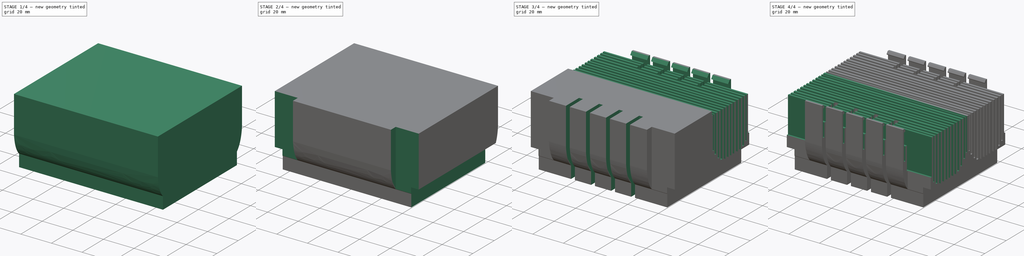
[diagram: build sequence overview — one tinted view per stage of 4, left to right]
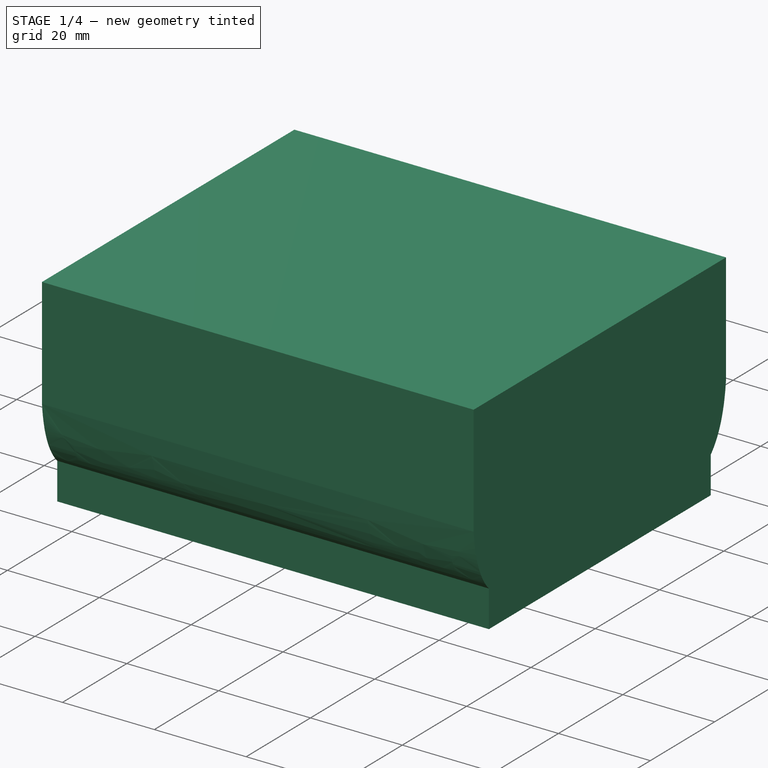
[diagram: stage 1 of 4 — iso view after this stage's code; geometry added in this stage tinted green]
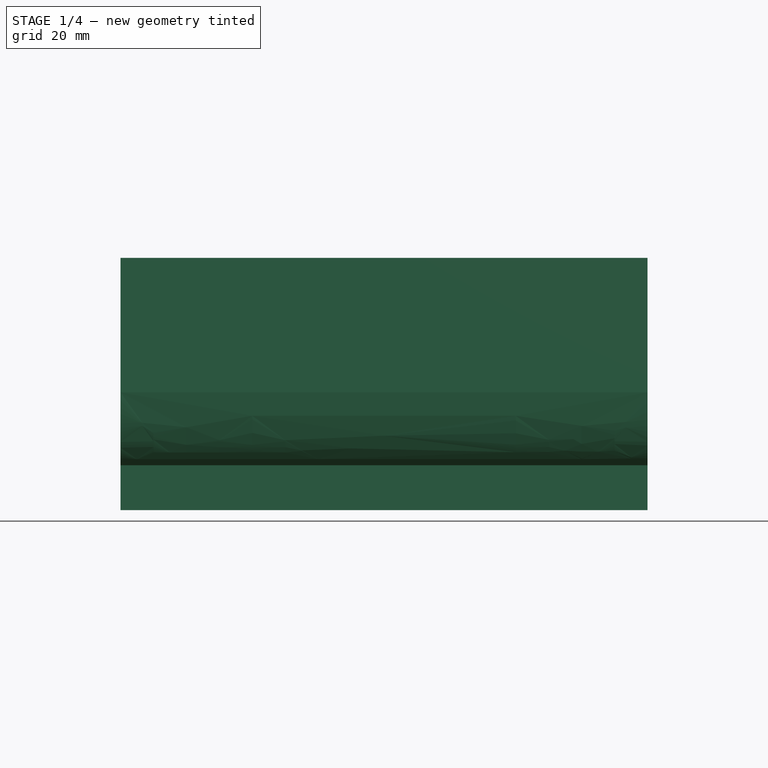
[diagram: stage 1 of 4 — front view after this stage's code; geometry added in this stage tinted green]
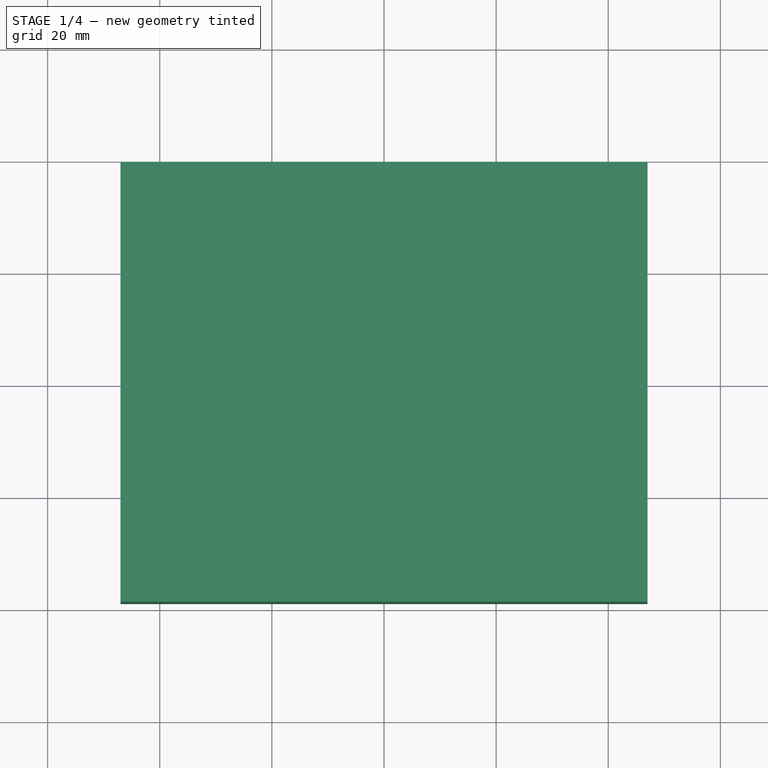
[diagram: stage 1 of 4 — top view after this stage's code; geometry added in this stage tinted green]
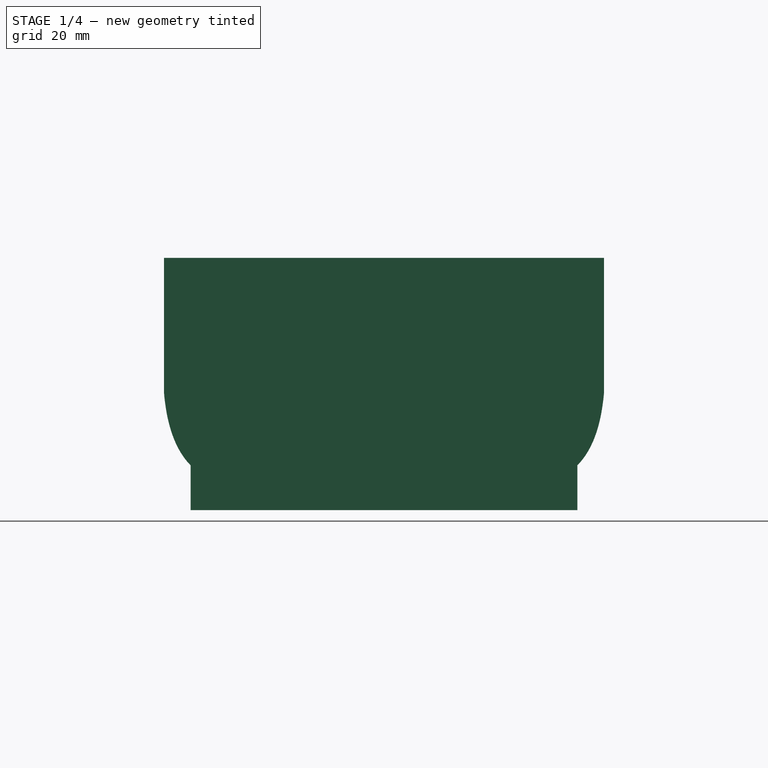
[diagram: stage 1 of 4 — right view after this stage's code; geometry added in this stage tinted green]
FCSTD DOCUMENT  (FreeCAD 0.17R13509 (Git))
Label: Heatsink 45x78x94
License: CreativeCommons Attribution-ShareAlike
LicenseURL: http://creativecommons.org/licenses/by-sa/4.0/
objects: Sketcher::SketchObject×6, PartDesign::Pocket×5, PartDesign::Mirrored×5, PartDesign::Fillet×2, PartDesign::Pad×1, PartDesign::Body×1, App::Part×1
note: 26 computed .brp shape members not serialized (recipe doc carries the construction recipe); baked Part::Feature solids carry a one-line shape summary decoded from their .brp

FEATURE [Sketcher::SketchObject] Sketch
  MapMode = 5
  Support = -> [XY_Plane001]
  sketch-geometry (6):
    g0: LineSegment StartX=-47 StartY=39.25 StartZ=0 EndX=47 EndY=39.25 EndZ=0
    g1: LineSegment StartX=47 StartY=39.25 StartZ=0 EndX=47 EndY=-39.25 EndZ=0
    g2: LineSegment StartX=47 StartY=-39.25 StartZ=0 EndX=-47 EndY=-39.25 EndZ=0
    g3: LineSegment StartX=-47 StartY=-39.25 StartZ=0 EndX=-47 EndY=39.25 EndZ=0
    g4: LineSegment [constr] StartX=-47 StartY=39.25 StartZ=0 EndX=0 EndY=0 EndZ=0
    g5: LineSegment [constr] StartX=0 StartY=0 StartZ=0 EndX=47 EndY=-39.25 EndZ=0
  constraints (16):
    c: Coincident(g0,g1)
    c: Coincident(g1,g2)
    c: Coincident(g2,g3)
    c: Coincident(g3,g0)
    c: Horizontal(g0)
    c: Horizontal(g2)
    c: Vertical(g1)
    c: Vertical(g3)
    c: Coincident(g0,g4)
    c: Coincident(g4,g-1)
    c: Coincident(g4,g5)
    c: Coincident(g5,g1)
    c: Equal(g5,g4)
    c: Parallel(g4,g5)
    c: DistanceY(g1,g1) = 78.5
    c: DistanceX(g0,g0) = 94
FEATURE [PartDesign::Pad] Pad
  Length = 45
  Length2 = 100
  Profile = -> Sketch
  Refine = true
  Type = 0
FEATURE [Sketcher::SketchObject] Sketch001
  ExternalGeometry = -> [Pad]
  MapMode = 5
  Placement = pos=(47,0,0) rot=(0.57735,0.57735,0.57735;2.0944rad)
  Support = -> [Pad]
  sketch-geometry (12):
    g0: LineSegment StartX=-39.25 StartY=45 StartZ=0 EndX=-39.25 EndY=21 EndZ=0
    g1: LineSegment StartX=-34.5 StartY=8 StartZ=0 EndX=-34.5 EndY=-2 EndZ=0
    g2: LineSegment StartX=-34.5 StartY=-2 StartZ=0 EndX=-44.25 EndY=-2 EndZ=0
    g3: LineSegment StartX=-44.25 StartY=-2 StartZ=0 EndX=-44.25 EndY=48 EndZ=0
    g4: LineSegment StartX=-44.25 StartY=48 StartZ=0 EndX=-39.25 EndY=48 EndZ=0
    g5: LineSegment StartX=-39.25 StartY=48 StartZ=0 EndX=-39.25 EndY=45 EndZ=0
    g6: Circle [constr] CenterX=-39.25 CenterY=21 CenterZ=0 NormalX=0 NormalY=0 NormalZ=1 AngleXU=0 Radius=3
    g7: Circle [constr] CenterX=-38.4927 CenterY=12.0467 CenterZ=0 NormalX=0 NormalY=0 NormalZ=1 AngleXU=0 Radius=3
    g8: Circle [constr] CenterX=-34.5 CenterY=8 CenterZ=0 NormalX=0 NormalY=0 NormalZ=1 AngleXU=0 Radius=3
    g9: BSplineCurve PolesCount=3 KnotsCount=2 Degree=2 IsPeriodic=0
    g10: GeomPoint [constr] X=-39.25 Y=21 Z=0
    g11: GeomPoint [constr] X=-34.5 Y=8 Z=0
  constraints (28):
    c: Coincident(g0,g-3)
    c: Vertical(g0)
    c: Vertical(g1)
    c: Coincident(g1,g2)
    c: Horizontal(g2)
    c: Coincident(g2,g3)
    c: Vertical(g3)
    c: Coincident(g3,g4)
    c: Horizontal(g4)
    c: Coincident(g4,g5)
    c: Coincident(g5,g0)
    c: Vertical(g5)
    c: Coincident(g6,g0)
    c: Radius(g6) = 3
    c: Equal(g6,g7)
    c: Equal(g6,g8)
    c: Coincident(g8,g1)
    c: InternalAlignment(g6,g9)
    c: InternalAlignment(g7,g9)
    c: InternalAlignment(g8,g9)
    c: InternalAlignment(g10,g9)
    c: InternalAlignment(g11,g9)
    c: DistanceX(g1,g-1) = 34.5
    c: DistanceY(g-1,g1) = 8
    c: DistanceY(g-1,g0) = 21
    c: DistanceY(g1,g1) = 10
    c: DistanceY(g3,g3) = 50
    c: DistanceX(g4,g4) = 5
FEATURE [PartDesign::Pocket] Pocket
  BaseFeature = -> Pad
  Length = 5
  Length2 = 100
  Profile = -> Sketch001
  Refine = true
  Type = 1
FEATURE [PartDesign::Mirrored] Mirrored
  BaseFeature = -> Pocket
  MirrorPlane = -> XZ_Plane001
  Originals = -> [Pocket]
  Refine = true
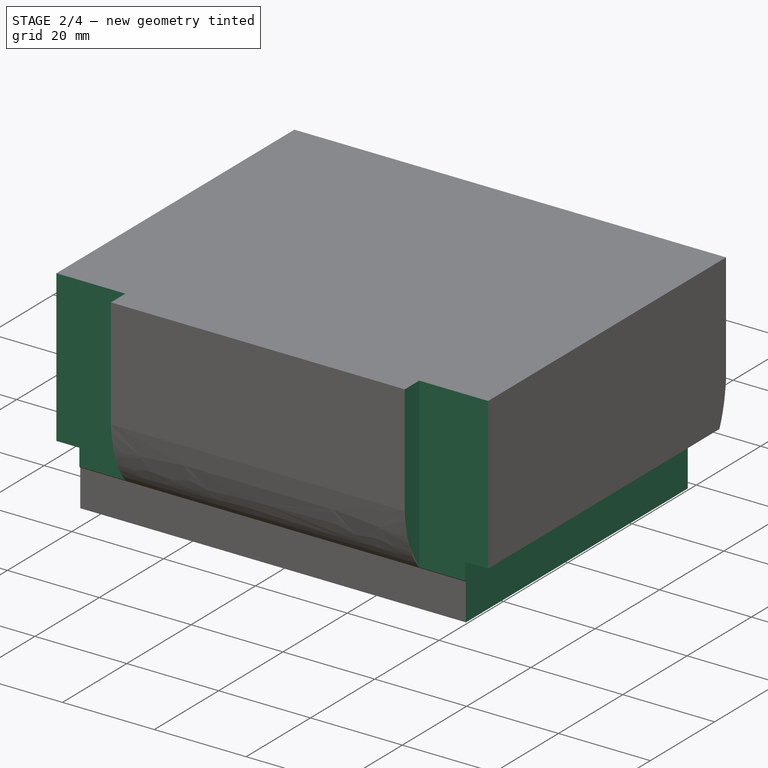
[diagram: stage 2 of 4 — iso view after this stage's code; geometry added in this stage tinted green]
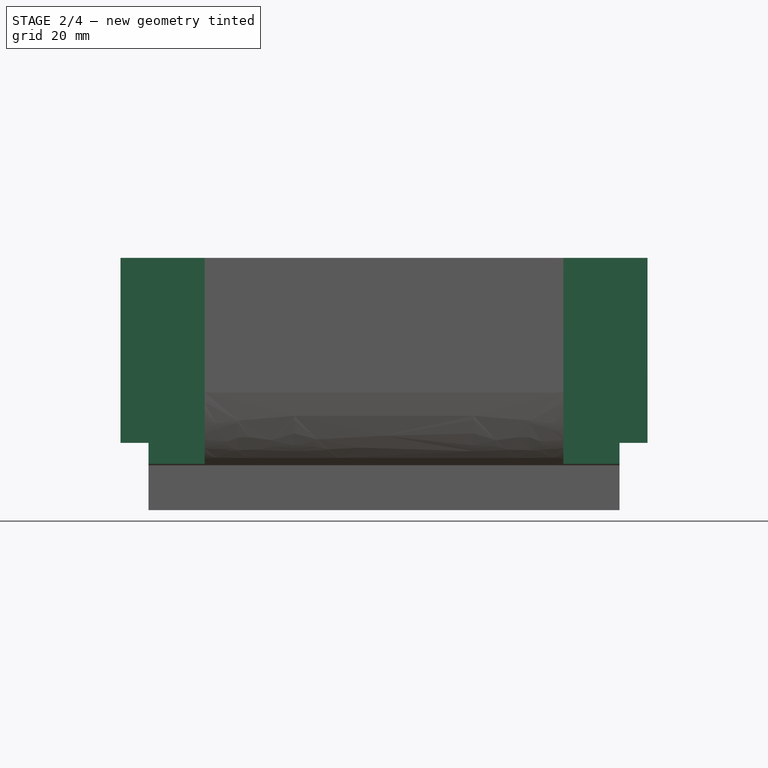
[diagram: stage 2 of 4 — front view after this stage's code; geometry added in this stage tinted green]
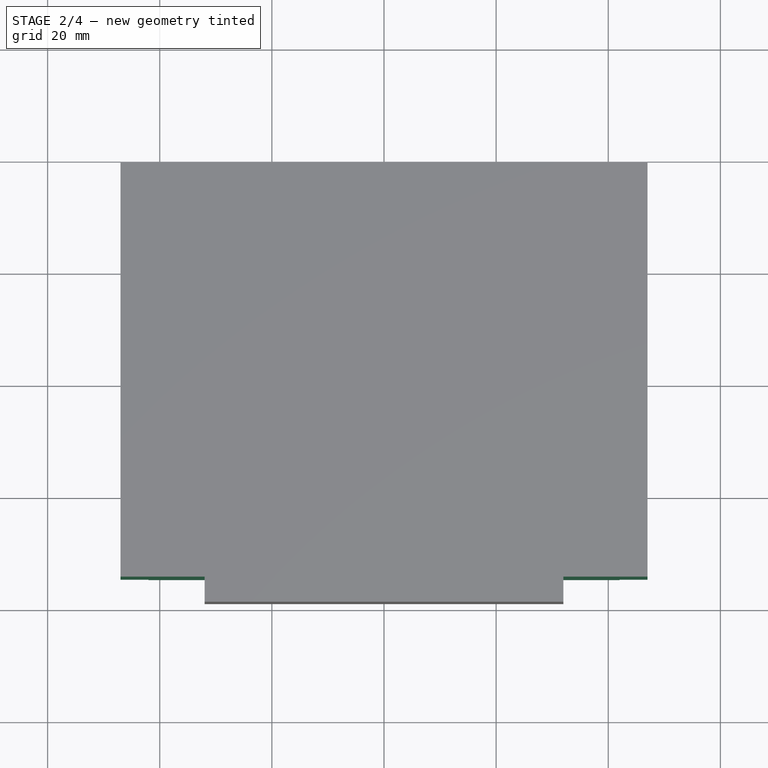
[diagram: stage 2 of 4 — top view after this stage's code; geometry added in this stage tinted green]
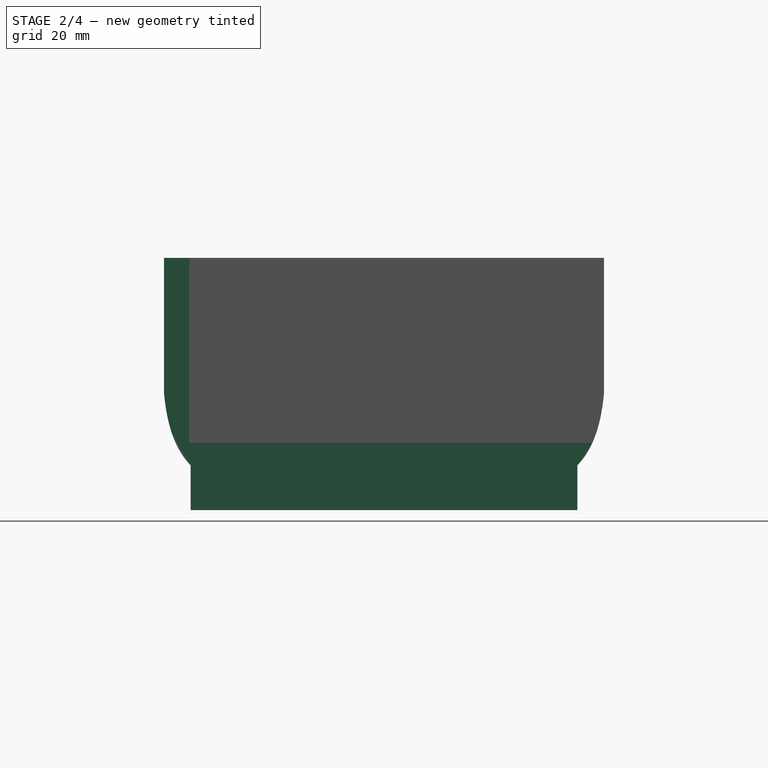
[diagram: stage 2 of 4 — right view after this stage's code; geometry added in this stage tinted green]
FEATURE [Sketcher::SketchObject] Sketch002
  MapMode = 5
  Placement = pos=(47,0,0) rot=(0.57735,0.57735,0.57735;2.0944rad)
  Support = -> [Mirrored]
  sketch-geometry (4):
    g0: LineSegment StartX=-40 StartY=12 StartZ=0 EndX=40 EndY=12 EndZ=0
    g1: LineSegment StartX=40 StartY=12 StartZ=0 EndX=40 EndY=0 EndZ=0
    g2: LineSegment StartX=40 StartY=0 StartZ=0 EndX=-40 EndY=0 EndZ=0
    g3: LineSegment StartX=-40 StartY=0 StartZ=0 EndX=-40 EndY=12 EndZ=0
  constraints (12):
    c: Coincident(g0,g1)
    c: Coincident(g1,g2)
    c: Coincident(g2,g3)
    c: Coincident(g3,g0)
    c: Horizontal(g0)
    c: Horizontal(g2)
    c: Vertical(g1)
    c: Vertical(g3)
    c: PointOnObject(g1,g-1)
    c: Symmetric(g1,g2,g-2)
    c: DistanceX(g2,g2) = 80
    c: DistanceY(g1,g1) = 12
FEATURE [PartDesign::Pocket] Pocket001
  BaseFeature = -> Mirrored
  Length = 5
  Length2 = 100
  Profile = -> Sketch002
  Refine = true
  Type = 0
FEATURE [Sketcher::SketchObject] Sketch003
  MapMode = 5
  Placement = pos=(0,-39.25,0) rot=(1,0,0;1.5708rad)
  sketch-geometry (8):
    g0: LineSegment StartX=32 StartY=45 StartZ=0 EndX=50 EndY=45 EndZ=0
    g1: LineSegment StartX=50 StartY=45 StartZ=0 EndX=50 EndY=0 EndZ=0
    g2: LineSegment StartX=50 StartY=0 StartZ=0 EndX=32 EndY=0 EndZ=0
    g3: LineSegment StartX=32 StartY=0 StartZ=0 EndX=32 EndY=45 EndZ=0
    g4: LineSegment StartX=-32 StartY=0 StartZ=0 EndX=-50 EndY=0 EndZ=0
    g5: LineSegment StartX=-50 StartY=0 StartZ=0 EndX=-50 EndY=45 EndZ=0
    g6: LineSegment StartX=-50 StartY=45 StartZ=0 EndX=-32 EndY=45 EndZ=0
    g7: LineSegment StartX=-32 StartY=45 StartZ=0 EndX=-32 EndY=0 EndZ=0
  constraints (24):
    c: Coincident(g0,g1)
    c: Coincident(g1,g2)
    c: Coincident(g2,g3)
    c: Coincident(g3,g0)
    c: Horizontal(g0)
    c: Horizontal(g2)
    c: Vertical(g1)
    c: Vertical(g3)
    c: PointOnObject(g1,g-1)
    c: DistanceX(g-1,g2) = 32
    c: DistanceX(g2,g2) = 18
    c: DistanceY(g1,g1) = 45
    c: Coincident(g4,g5)
    c: Coincident(g5,g6)
    c: Coincident(g6,g7)
    c: Coincident(g7,g4)
    c: Horizontal(g4)
    c: Horizontal(g6)
    c: Vertical(g5)
    c: Vertical(g7)
    c: PointOnObject(g4,g-1)
    c: Equal(g3,g7)
    c: Equal(g6,g0)
    c: Symmetric(g4,g2,g-2)
FEATURE [PartDesign::Pocket] Pocket002
  BaseFeature = -> Pocket001
  Length = 4.5
  Length2 = 100
  Profile = -> Sketch003
  Refine = true
  Type = 0
FEATURE [PartDesign::Mirrored] Mirrored001
  BaseFeature = -> Pocket002
  MirrorPlane = -> YZ_Plane001
  Originals = -> [Pocket001]
  Refine = true
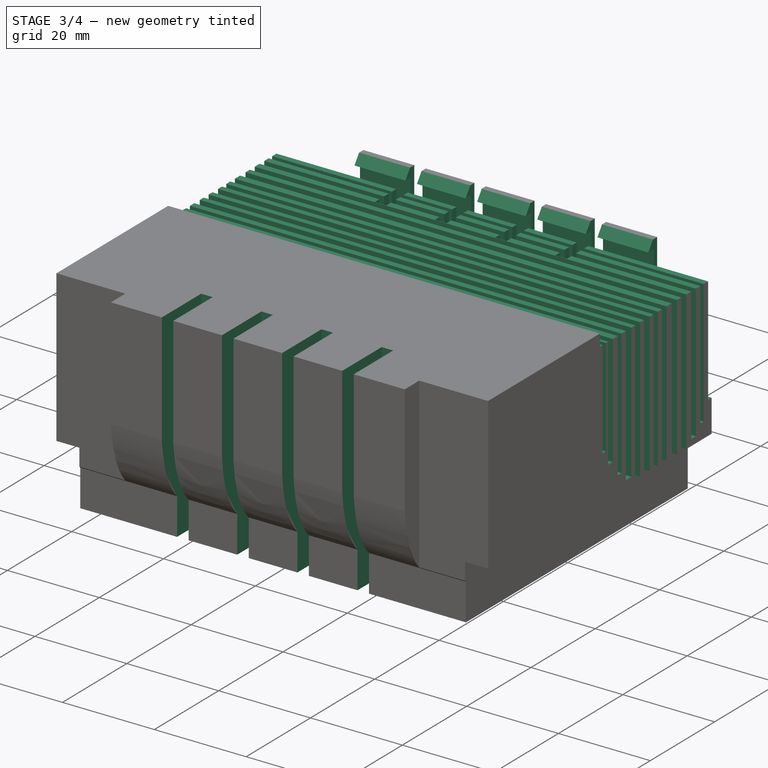
[diagram: stage 3 of 4 — iso view after this stage's code; geometry added in this stage tinted green]
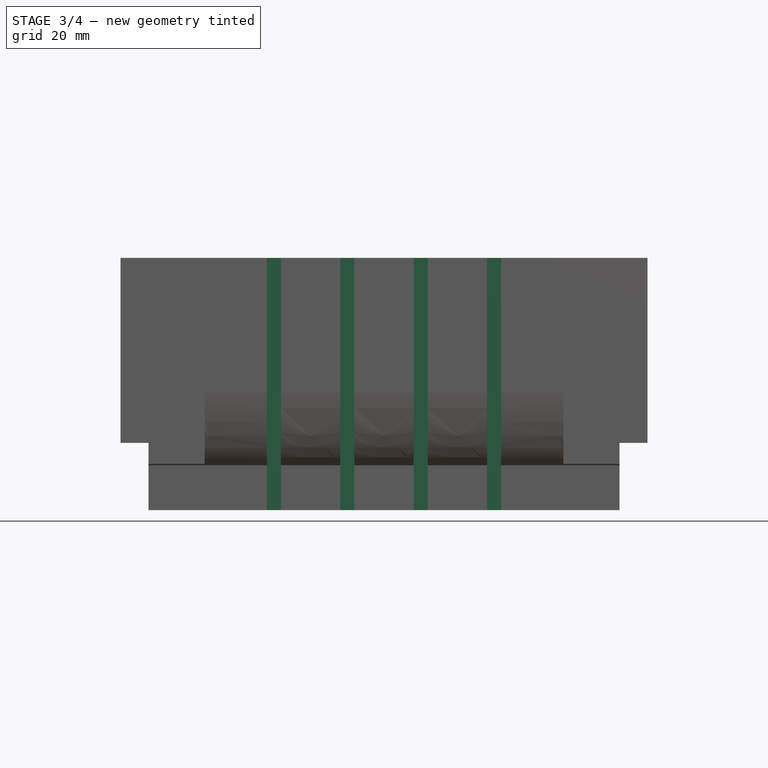
[diagram: stage 3 of 4 — front view after this stage's code; geometry added in this stage tinted green]
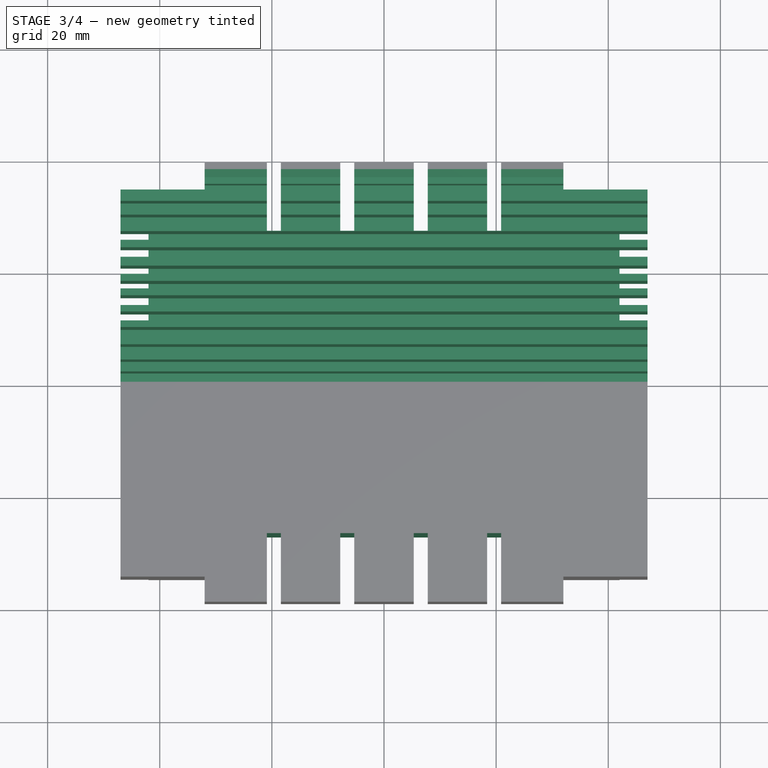
[diagram: stage 3 of 4 — top view after this stage's code; geometry added in this stage tinted green]
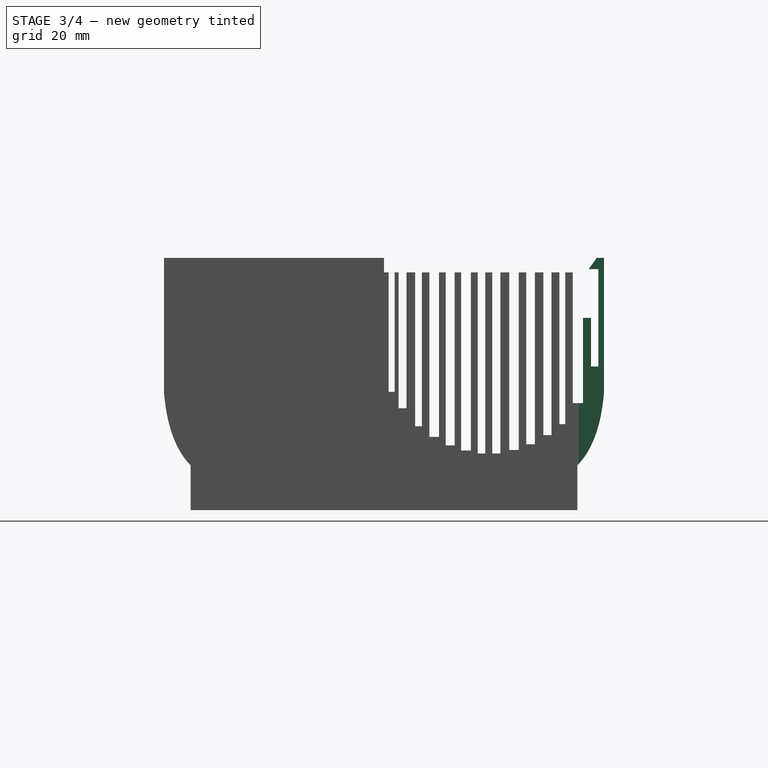
[diagram: stage 3 of 4 — right view after this stage's code; geometry added in this stage tinted green]
FEATURE [PartDesign::Mirrored] Mirrored002
  BaseFeature = -> Mirrored001
  MirrorPlane = -> XZ_Plane001
  Originals = -> [Pocket002]
  Refine = true
FEATURE [Sketcher::SketchObject] Sketch004
  MapMode = 5
  Placement = pos=(0,0,0) rot=(1,0,0;3.14159rad)
  Support = -> [Mirrored002]
  sketch-geometry (16):
    g0: LineSegment StartX=-20.9 StartY=42 StartZ=0 EndX=-18.4 EndY=42 EndZ=0
    g1: LineSegment StartX=-18.4 StartY=42 StartZ=0 EndX=-18.4 EndY=27 EndZ=0
    g2: LineSegment StartX=-18.4 StartY=27 StartZ=0 EndX=-20.9 EndY=27 EndZ=0
    g3: LineSegment StartX=-20.9 StartY=27 StartZ=0 EndX=-20.9 EndY=42 EndZ=0
    g4: LineSegment StartX=-7.8 StartY=42 StartZ=0 EndX=-5.3 EndY=42 EndZ=0
    g5: LineSegment StartX=-5.3 StartY=42 StartZ=0 EndX=-5.3 EndY=27 EndZ=0
    g6: LineSegment StartX=-5.3 StartY=27 StartZ=0 EndX=-7.8 EndY=27 EndZ=0
    g7: LineSegment StartX=-7.8 StartY=27 StartZ=0 EndX=-7.8 EndY=42 EndZ=0
    g8: LineSegment StartX=5.3 StartY=42 StartZ=0 EndX=7.8 EndY=42 EndZ=0
    g9: LineSegment StartX=7.8 StartY=42 StartZ=0 EndX=7.8 EndY=27 EndZ=0
    g10: LineSegment StartX=7.8 StartY=27 StartZ=0 EndX=5.3 EndY=27 EndZ=0
    g11: LineSegment StartX=5.3 StartY=27 StartZ=0 EndX=5.3 EndY=42 EndZ=0
    g12: LineSegment StartX=18.4 StartY=42 StartZ=0 EndX=20.9 EndY=42 EndZ=0
    g13: LineSegment StartX=20.9 StartY=42 StartZ=0 EndX=20.9 EndY=27 EndZ=0
    g14: LineSegment StartX=20.9 StartY=27 StartZ=0 EndX=18.4 EndY=27 EndZ=0
    g15: LineSegment StartX=18.4 StartY=27 StartZ=0 EndX=18.4 EndY=42 EndZ=0
  constraints (46):
    c: Coincident(g0,g1)
    c: Coincident(g1,g2)
    c: Coincident(g2,g3)
    c: Coincident(g3,g0)
    c: Horizontal(g0)
    c: Horizontal(g2)
    c: Vertical(g1)
    c: Vertical(g3)
    c: Coincident(g4,g5)
    c: Coincident(g5,g6)
    c: Coincident(g6,g7)
    c: Coincident(g7,g4)
    c: Horizontal(g4)
    c: Horizontal(g6)
    c: Vertical(g5)
    c: Vertical(g7)
    c: Coincident(g8,g9)
    c: Coincident(g9,g10)
    c: Coincident(g10,g11)
    c: Coincident(g11,g8)
    c: Horizontal(g8)
    c: Horizontal(g10)
    c: Vertical(g9)
    c: Vertical(g11)
    c: Coincident(g12,g13)
    c: Coincident(g13,g14)
    c: Coincident(g14,g15)
    c: Coincident(g15,g12)
    c: Horizontal(g12)
    c: Horizontal(g14)
    c: Vertical(g13)
    c: Vertical(g15)
    c: Symmetric(g8,g4,g-2)
    c: Equal(g8,g4)
    c: Symmetric(g12,g0,g-2)
    c: Equal(g12,g8)
    c: Equal(g0,g4)
    c: Equal(g3,g7)
    c: Equal(g7,g11)
    c: Equal(g11,g15)
    c: Horizontal(g12,g8)
    c: DistanceY(g-1,g5) = 27
    c: DistanceX(g0,g0) = 2.5
    c: DistanceX(g0,g4) = 10.6
    c: DistanceX(g4,g8) = 10.6
    c: DistanceY(g3,g3) = 15
FEATURE [PartDesign::Pocket] Pocket003
  BaseFeature = -> Mirrored002
  Length = 5
  Length2 = 100
  Profile = -> Sketch004
  Refine = true
  Type = 1
FEATURE [PartDesign::Mirrored] Mirrored003
  BaseFeature = -> Pocket003
  MirrorPlane = -> XZ_Plane001
  Originals = -> [Pocket003]
  Refine = true
FEATURE [Sketcher::SketchObject] Sketch005
  ExternalGeometry = -> [Mirrored003]
  MapMode = 5
  Placement = pos=(47,0,0) rot=(0.57735,0.57735,0.57735;2.0944rad)
  Support = -> [Mirrored003]
  sketch-geometry (66):
    g0: ArcOfCircle [constr] CenterX=18.735 CenterY=30 CenterZ=0 NormalX=0 NormalY=0 NormalZ=1 AngleXU=0 Radius=20 StartAngle=3.49916 EndAngle=6.06251
    g1: LineSegment StartX=38.25 StartY=25.6223 StartZ=0 EndX=38.25 EndY=42.9982 EndZ=0
    g2: LineSegment StartX=38.25 StartY=42.9982 StartZ=0 EndX=36.5173 EndY=42.9982 EndZ=0
    g3: LineSegment StartX=36.5173 StartY=42.9982 StartZ=0 EndX=38.7772 EndY=46.1591 EndZ=0
    g4: LineSegment [constr] StartX=38.7772 StartY=46.1591 StartZ=0 EndX=38.7772 EndY=50.3552 EndZ=0
    g5: LineSegment [constr] StartX=38.7772 StartY=50.3552 StartZ=0 EndX=0 EndY=50.3552 EndZ=0
    g6: LineSegment [constr] StartX=0 StartY=50.3552 StartZ=0 EndX=0 EndY=23 EndZ=0
    g7: LineSegment [constr] StartX=18.735 StartY=10 StartZ=0 EndX=18.735 EndY=0 EndZ=0
    g8: LineSegment [constr] StartX=18.735 StartY=10 StartZ=0 EndX=0 EndY=10 EndZ=0
    g9: LineSegment StartX=0.829261 StartY=42.4121 StartZ=0 EndX=0.829261 EndY=21.0902 EndZ=0
    g10: LineSegment StartX=0.829261 StartY=21.0902 StartZ=0 EndX=1.90419 EndY=21.0902 EndZ=0
    g11: LineSegment StartX=1.90419 StartY=21.0902 StartZ=0 EndX=1.90419 EndY=42.4121 EndZ=0
    g12: LineSegment StartX=1.90419 StartY=42.4121 StartZ=0 EndX=2.59873 EndY=42.4121 EndZ=0
    g13: LineSegment StartX=2.59873 StartY=42.4121 StartZ=0 EndX=2.59873 EndY=18.1839 EndZ=0
    g14: LineSegment StartX=2.59873 StartY=18.1839 StartZ=0 EndX=4.01441 EndY=18.1839 EndZ=0
    g15: LineSegment StartX=4.01441 StartY=18.1839 StartZ=0 EndX=4.01441 EndY=42.4121 EndZ=0
    g16: LineSegment StartX=4.01441 StartY=42.4121 StartZ=0 EndX=5.54671 EndY=42.4121 EndZ=0
    g17: LineSegment StartX=5.54671 StartY=42.4121 StartZ=0 EndX=5.54671 EndY=14.9644 EndZ=0
    g18: LineSegment StartX=5.54671 StartY=14.9644 StartZ=0 EndX=6.75482 EndY=14.9644 EndZ=0
    g19: LineSegment StartX=6.75482 StartY=14.9644 StartZ=0 EndX=6.75482 EndY=42.4121 EndZ=0
    g20: LineSegment StartX=6.75482 StartY=42.4121 StartZ=0 EndX=8.104 EndY=42.4121 EndZ=0
    g21: LineSegment StartX=8.104 StartY=42.4121 StartZ=0 EndX=8.104 EndY=13.0595 EndZ=0
    g22: LineSegment StartX=8.104 StartY=13.0595 StartZ=0 EndX=9.81191 EndY=13.0595 EndZ=0
    g23: LineSegment StartX=9.81191 StartY=13.0595 StartZ=0 EndX=9.81191 EndY=42.4121 EndZ=0
    g24: LineSegment StartX=9.81191 StartY=42.4121 StartZ=0 EndX=11.0121 EndY=42.4121 EndZ=0
    g25: LineSegment StartX=11.0121 StartY=42.4121 StartZ=0 EndX=11.0121 EndY=11.5512 EndZ=0
    g26: LineSegment StartX=11.0121 StartY=11.5512 StartZ=0 EndX=12.5874 EndY=11.5512 EndZ=0
    g27: LineSegment StartX=12.5874 StartY=11.5512 StartZ=0 EndX=12.5874 EndY=42.4121 EndZ=0
    g28: LineSegment StartX=12.5874 StartY=42.4121 StartZ=0 EndX=13.7568 EndY=42.4121 EndZ=0
    g29: LineSegment StartX=13.7568 StartY=42.4121 StartZ=0 EndX=13.7568 EndY=10.6295 EndZ=0
    g30: LineSegment StartX=13.7568 StartY=10.6295 StartZ=0 EndX=15.4904 EndY=10.6295 EndZ=0
    g31: LineSegment StartX=15.4904 StartY=10.6295 StartZ=0 EndX=15.4904 EndY=42.4121 EndZ=0
    g32: LineSegment StartX=15.4904 StartY=42.4121 StartZ=0 EndX=16.7162 EndY=42.4121 EndZ=0
    g33: LineSegment StartX=16.7162 StartY=42.4121 StartZ=0 EndX=16.7162 EndY=10.1021 EndZ=0
    g34: LineSegment StartX=16.7162 StartY=10.1021 StartZ=0 EndX=18.0509 EndY=10.1021 EndZ=0
    g35: LineSegment StartX=18.0509 StartY=10.1021 StartZ=0 EndX=18.0509 EndY=42.4121 EndZ=0
    g36: LineSegment StartX=18.0509 StartY=42.4121 StartZ=0 EndX=19.3186 EndY=42.4121 EndZ=0
    g37: LineSegment StartX=19.3186 StartY=42.4121 StartZ=0 EndX=19.3186 EndY=10.1033 EndZ=0
    g38: LineSegment StartX=19.3186 StartY=10.1033 StartZ=0 EndX=20.7647 EndY=10.1033 EndZ=0
    g39: LineSegment StartX=20.7647 StartY=10.1033 StartZ=0 EndX=20.7647 EndY=42.4121 EndZ=0
    g40: LineSegment StartX=20.7647 StartY=42.4121 StartZ=0 EndX=22.3486 EndY=42.4121 EndZ=0
    g41: LineSegment StartX=22.3486 StartY=42.4121 StartZ=0 EndX=22.3486 EndY=10.7184 EndZ=0
    g42: LineSegment StartX=22.3486 StartY=10.7184 StartZ=0 EndX=24.0472 EndY=10.7184 EndZ=0
    g43: LineSegment StartX=24.0472 StartY=10.7184 StartZ=0 EndX=24.0472 EndY=42.4121 EndZ=0
    g44: LineSegment StartX=24.0472 StartY=42.4121 StartZ=0 EndX=25.3785 EndY=42.4121 EndZ=0
    g45: LineSegment StartX=25.3785 StartY=42.4121 StartZ=0 EndX=25.3785 EndY=11.75 EndZ=0
    g46: LineSegment StartX=25.3785 StartY=11.75 StartZ=0 EndX=26.9164 EndY=11.75 EndZ=0
    g47: LineSegment StartX=26.9164 StartY=11.75 StartZ=0 EndX=26.9164 EndY=42.4121 EndZ=0
    g48: LineSegment StartX=26.9164 StartY=42.4121 StartZ=0 EndX=28.4314 EndY=42.4121 EndZ=0
    g49: LineSegment StartX=28.4314 StartY=42.4121 StartZ=0 EndX=28.4314 EndY=13.3915 EndZ=0
    g50: LineSegment StartX=28.4314 StartY=13.3915 StartZ=0 EndX=29.8775 EndY=13.3915 EndZ=0
    g51: LineSegment StartX=29.8775 StartY=13.3915 StartZ=0 EndX=29.8775 EndY=42.4121 EndZ=0
    g52: LineSegment StartX=29.8775 StartY=42.4121 StartZ=0 EndX=31.2777 EndY=42.4121 EndZ=0
    g53: LineSegment StartX=31.2777 StartY=42.4121 StartZ=0 EndX=31.2777 EndY=15.3345 EndZ=0
    g54: LineSegment StartX=31.2777 StartY=15.3345 StartZ=0 EndX=32.3336 EndY=15.3345 EndZ=0
    g55: LineSegment StartX=32.3336 StartY=15.3345 StartZ=0 EndX=32.3336 EndY=42.4121 EndZ=0
    g56: LineSegment StartX=32.3336 StartY=42.4121 StartZ=0 EndX=33.665 EndY=42.4121 EndZ=0
    g57: LineSegment StartX=33.665 StartY=42.4121 StartZ=0 EndX=33.665 EndY=19.0988 EndZ=0
    g58: LineSegment StartX=33.665 StartY=19.0988 StartZ=0 EndX=35.503 EndY=19.0988 EndZ=0
    g59: LineSegment StartX=35.503 StartY=19.0988 StartZ=0 EndX=35.503 EndY=34.2998 EndZ=0
    g60: LineSegment StartX=35.503 StartY=34.2998 StartZ=0 EndX=36.9309 EndY=34.2998 EndZ=0
    g61: LineSegment StartX=36.9309 StartY=34.2998 StartZ=0 EndX=36.9309 EndY=25.6223 EndZ=0
    g62: LineSegment StartX=36.9309 StartY=25.6223 StartZ=0 EndX=38.25 EndY=25.6223 EndZ=0
    g63: LineSegment StartX=0.829261 StartY=42.4121 StartZ=0 EndX=0 EndY=42.4121 EndZ=0
    g64: LineSegment StartX=0 StartY=42.4121 StartZ=0 EndX=0 EndY=46.1591 EndZ=0
    g65: LineSegment StartX=0 StartY=46.1591 StartZ=0 EndX=38.7772 EndY=46.1591 EndZ=0
  constraints (165):
    c: PointOnObject(g0,g-2)
    c: DistanceY(g-1,g0) = 23
    c: Vertical(g1)
    c: Coincident(g2,g1)
    c: Coincident(g2,g3)
    c: Coincident(g3,g4)
    c: Vertical(g4)
    c: Coincident(g4,g5)
    c: PointOnObject(g5,g-2)
    c: Horizontal(g5)
    c: Coincident(g5,g6)
    c: Vertical(g6)
    c: Coincident(g1,g0)
    c: Horizontal(g2)
    c: Radius(g0) = 20
    c: PointOnObject(g7,g0)
    c: PointOnObject(g7,g-1)
    c: Vertical(g7)
    c: Coincident(g7,g8)
    c: Horizontal(g8)
    c: PointOnObject(g8,g-2)
    c: Tangent(g8,g0)
    c: DistanceY(g7,g7) = 10
    c: Vertical(g9)
    c: Coincident(g9,g10)
    c: Horizontal(g10)
    c: Coincident(g10,g11)
    c: Coincident(g11,g12)
    c: Horizontal(g12)
    c: Coincident(g12,g13)
    c: Vertical(g13)
    c: Coincident(g13,g14)
    c: Horizontal(g14)
    c: Coincident(g14,g15)
    c: Vertical(g15)
    c: Coincident(g15,g16)
    c: Horizontal(g16)
    c: Coincident(g16,g17)
    c: PointOnObject(g17,g0)
    c: Vertical(g17)
    c: Coincident(g17,g18)
    c: Coincident(g18,g19)
    c: Vertical(g19)
    c: Coincident(g19,g20)
    c: Horizontal(g20)
    c: Coincident(g20,g21)
    c: PointOnObject(g21,g0)
    c: Vertical(g21)
    c: Coincident(g21,g22)
    c: Coincident(g22,g23)
    c: Vertical(g23)
    c: Coincident(g23,g24)
    c: Coincident(g24,g25)
    c: PointOnObject(g25,g0)
    c: Vertical(g25)
    c: Coincident(g25,g26)
    c: Coincident(g26,g27)
    c: Vertical(g27)
    c: Coincident(g27,g28)
    c: Horizontal(g28)
    c: Coincident(g28,g29)
    c: PointOnObject(g29,g0)
    c: Vertical(g29)
    c: Coincident(g29,g30)
    c: Coincident(g30,g31)
    c: Vertical(g31)
    c: Coincident(g31,g32)
    c: Horizontal(g32)
    c: Coincident(g32,g33)
    c: PointOnObject(g33,g0)
    c: Vertical(g33)
    c: Coincident(g33,g34)
    c: Horizontal(g34)
    c: Coincident(g34,g35)
    c: Vertical(g35)
    c: Coincident(g35,g36)
    c: Horizontal(g36)
    c: Coincident(g36,g37)
    c: Vertical(g37)
    c: Coincident(g37,g38)
    c: PointOnObject(g38,g0)
    c: Horizontal(g38)
    c: Coincident(g38,g39)
    c: Vertical(g39)
    c: Coincident(g39,g40)
    c: Horizontal(g40)
    c: Coincident(g40,g41)
    c: Vertical(g41)
    c: Coincident(g41,g42)
    c: PointOnObject(g42,g0)
    c: Horizontal(g42)
    c: Coincident(g42,g43)
    c: Vertical(g43)
    c: Coincident(g43,g44)
    c: Coincident(g44,g45)
    c: Vertical(g45)
    c: Coincident(g45,g46)
    c: PointOnObject(g46,g0)
    c: Horizontal(g46)
    c: Coincident(g46,g47)
    c: Vertical(g47)
    c: Coincident(g47,g48)
    c: Horizontal(g48)
    c: Coincident(g48,g49)
    c: Vertical(g49)
    c: Coincident(g49,g50)
    c: PointOnObject(g50,g0)
    c: Coincident(g50,g51)
    c: Vertical(g51)
    c: Coincident(g51,g52)
    c: Coincident(g52,g53)
    c: Vertical(g53)
    c: Coincident(g53,g54)
    c: PointOnObject(g54,g0)
    c: Horizontal(g54)
    c: Coincident(g54,g55)
    c: Vertical(g55)
    c: Coincident(g55,g56)
    c: Horizontal(g56)
    c: Coincident(g56,g57)
    c: Vertical(g57)
    c: Coincident(g57,g58)
    c: Coincident(g58,g59)
    c: Vertical(g59)
    c: Vertical(g11)
    c: PointOnObject(g9,g0)
    c: PointOnObject(g13,g0)
    c: Horizontal(g18)
    c: Horizontal(g22)
    c: Horizontal(g26)
    c: Horizontal(g30)
    c: Horizontal(g50)
    c: Horizontal(g58)
    c: PointOnObject(g58,g0)
    c: Horizontal(g24)
    c: Horizontal(g11,g15)
    c: Horizontal(g15,g19)
    c: Horizontal(g19,g23)
    c: Horizontal(g23,g27)
    c: Horizontal(g27,g31)
    c: Horizontal(g31,g35)
    c: Horizontal(g35,g39)
    c: Horizontal(g39,g43)
    c: Horizontal(g43,g47)
    c: Horizontal(g47,g51)
    c: Horizontal(g51,g55)
    c: Horizontal(g52)
    c: Horizontal(g44)
    c: Coincident(g59,g60)
    c: Horizontal(g60)
    c: Coincident(g60,g61)
    c: Vertical(g61)
    c: Coincident(g61,g62)
    c: Coincident(g62,g0)
    c: Horizontal(g62)
    c: DistanceX(g0,g-3) = 1
    c: Horizontal(g11,g9)
    c: Coincident(g9,g63)
    c: PointOnObject(g63,g6)
    c: Horizontal(g63)
    c: Coincident(g63,g64)
    c: PointOnObject(g64,g6)
    c: Coincident(g64,g65)
    c: Coincident(g65,g3)
    c: Horizontal(g65)
FEATURE [PartDesign::Pocket] Pocket004
  BaseFeature = -> Mirrored003
  Length = 5
  Length2 = 100
  Profile = -> Sketch005
  Refine = true
  Type = 1
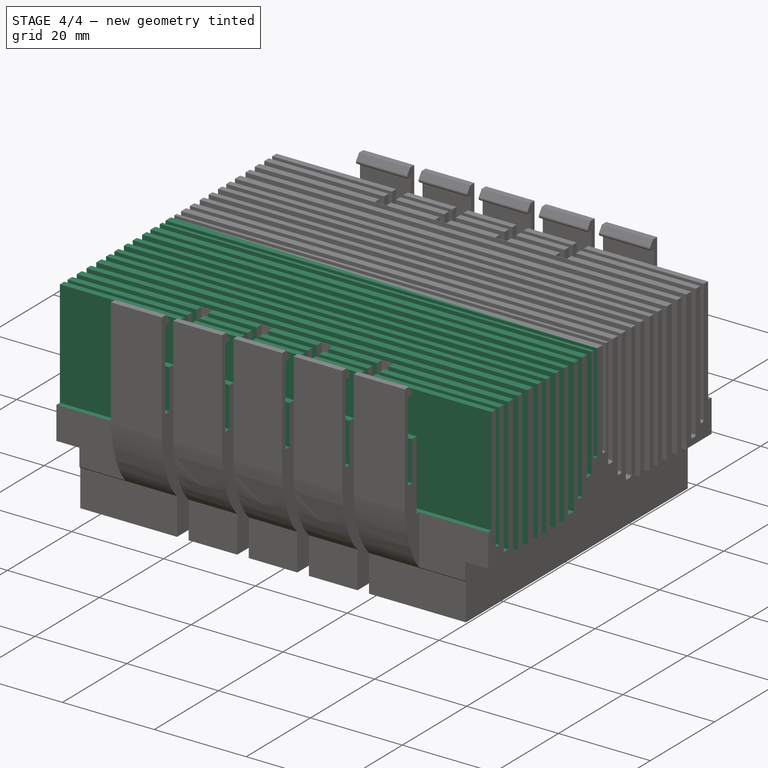
[diagram: stage 4 of 4 — iso view after this stage's code; geometry added in this stage tinted green]
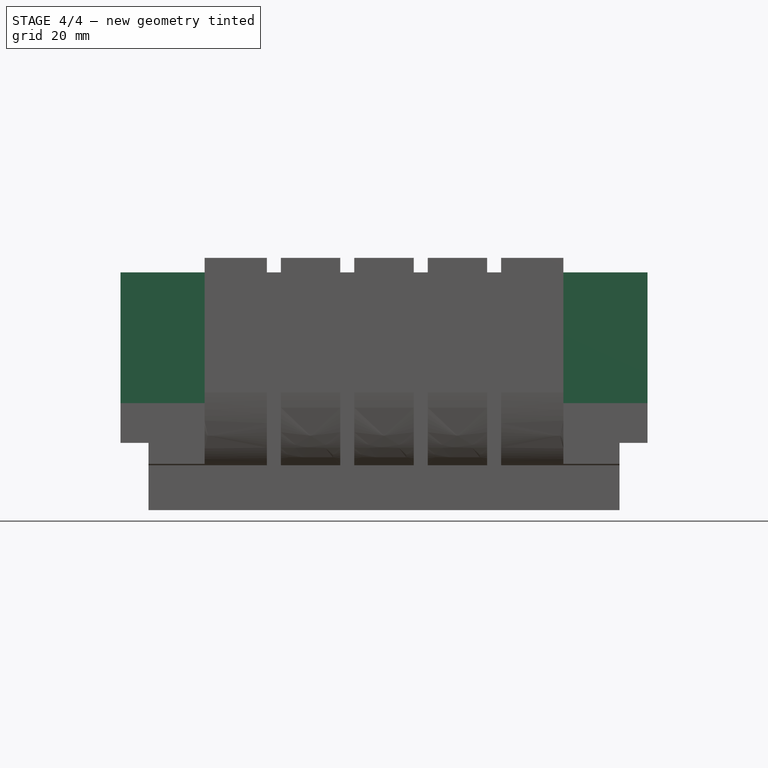
[diagram: stage 4 of 4 — front view after this stage's code; geometry added in this stage tinted green]
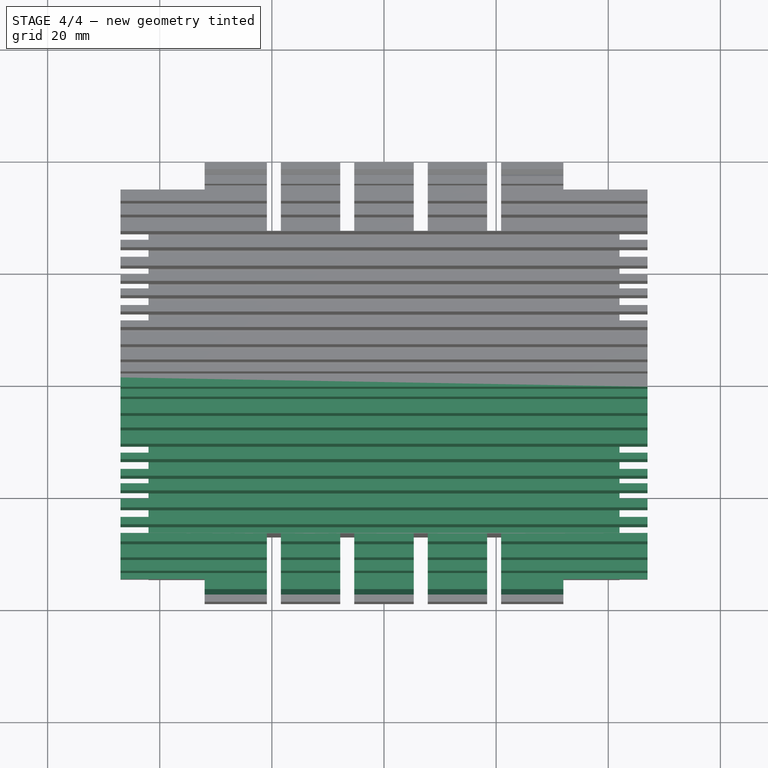
[diagram: stage 4 of 4 — top view after this stage's code; geometry added in this stage tinted green]
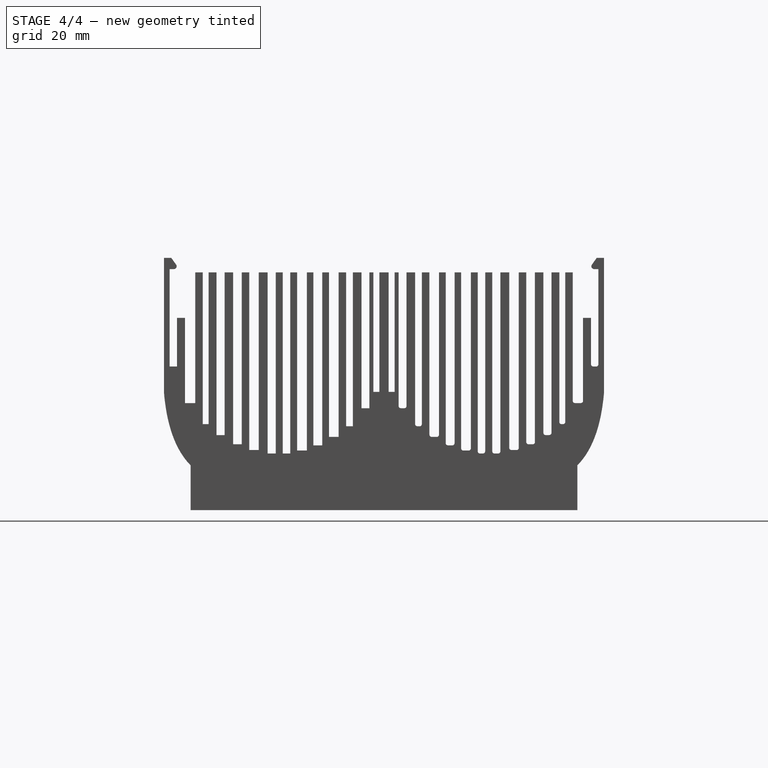
[diagram: stage 4 of 4 — right view after this stage's code; geometry added in this stage tinted green]
FEATURE [PartDesign::Mirrored] Mirrored004
  BaseFeature = -> Pocket004
  MirrorPlane = -> Sketch005 [V_Axis]
  Originals = -> [Pocket004]
  Refine = true
FEATURE [PartDesign::Fillet] Fillet
  Base = -> Mirrored004 [Edge1005,Edge969,Edge950,Edge931,Edge875,Edge43,Edge768,Edge786,Edge804,Edge826]
  BaseFeature = -> Mirrored004
  Radius = 0.5
FEATURE [PartDesign::Fillet] Fillet001
  Base = -> Fillet [Edge32,Edge26,Edge40,Edge42,Edge181,Edge183,Edge184,Edge182,Edge192,Edge194,Edge208,Edge210,Edge224,Edge226,Edge240,Edge242,Edge256,Edge258,Edge272,Edge274,Edge1144,Edge1143,Edge1140,Edge1139,Edge1136,Edge1135]
  BaseFeature = -> Fillet
  Radius = 0.4
FEATURE [PartDesign::Body] Body
  Group = -> [Sketch,Pad,Sketch001,Pocket,Mirrored,Sketch002,Pocket001,Sketch003,Pocket002,Mirrored001,Mirrored002,Sketch004,Pocket003,Mirrored003,Sketch005,Pocket004,Mirrored004,Fillet,Fillet001]
  Origin = -> Origin001
  Tip = -> Fillet001
FEATURE [App::Part] Part  label="Disipador"
  Group = -> [Body]
  License = CC BY 3.0
  LicenseURL = http://creativecommons.org/licenses/by/3.0/
  Origin = -> Origin
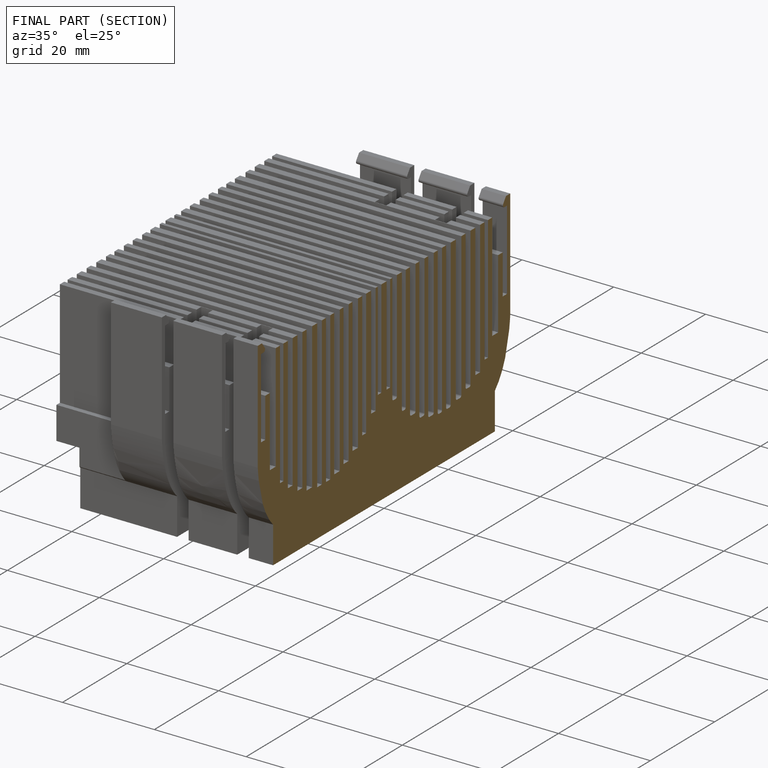
[diagram: finished part — half-section view (interior)]
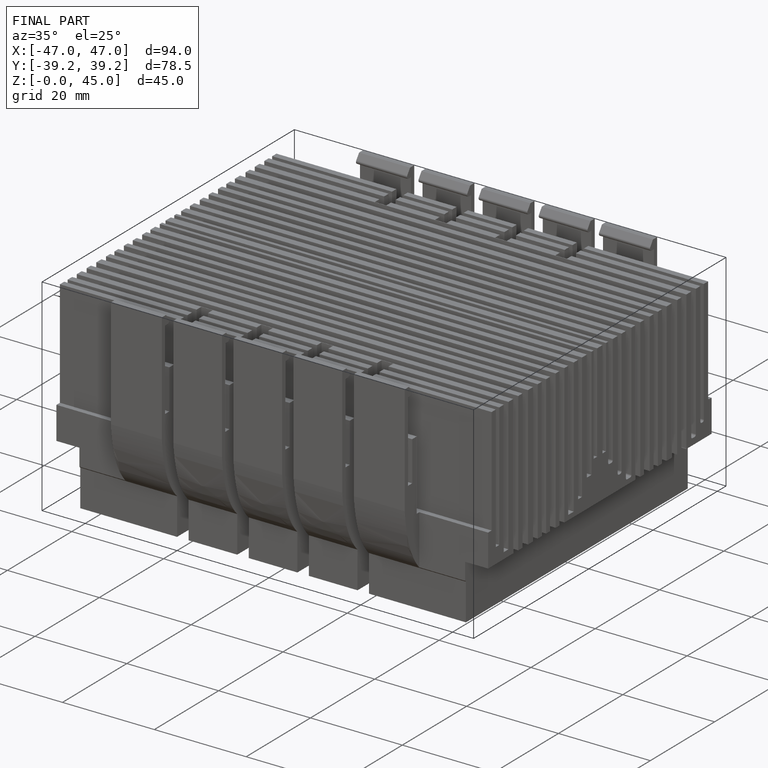
[diagram: finished part — iso view with bounding-box wireframe]
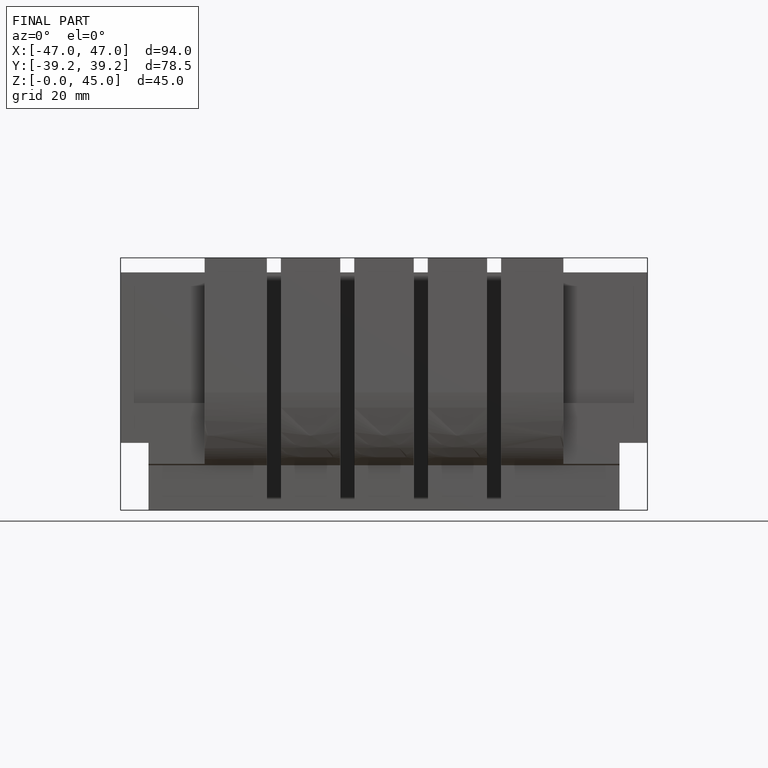
[diagram: finished part — front view with bounding-box wireframe]
